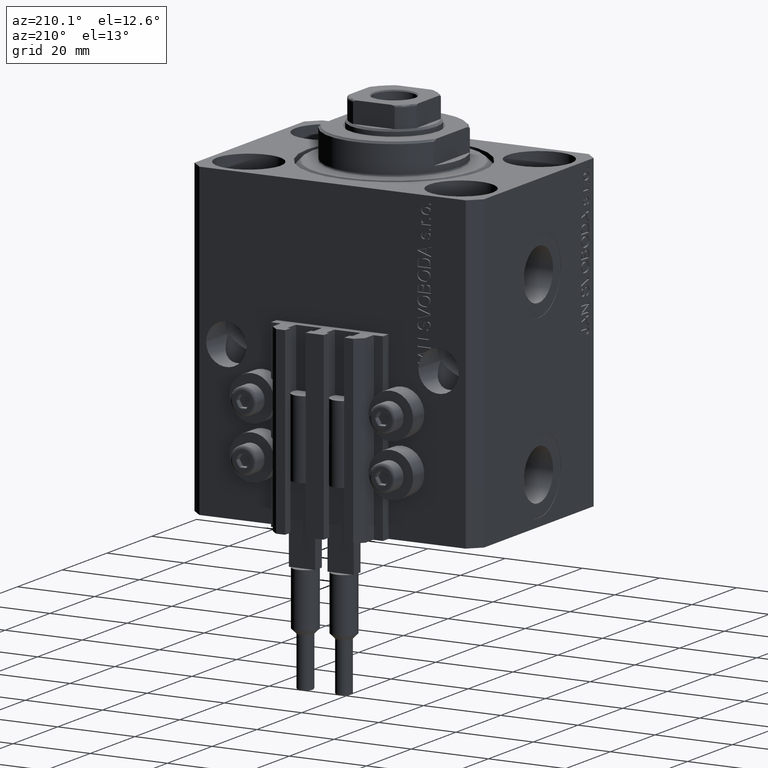
[diagram: clean part render]
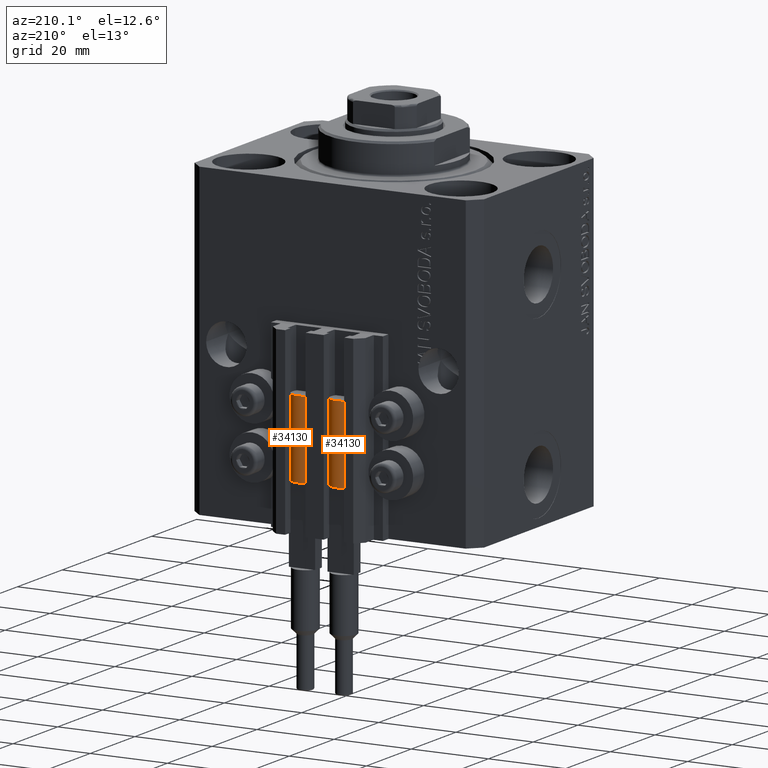
[diagram: same view with one multi-face feature highlighted, each face labeled with its STEP entity id]
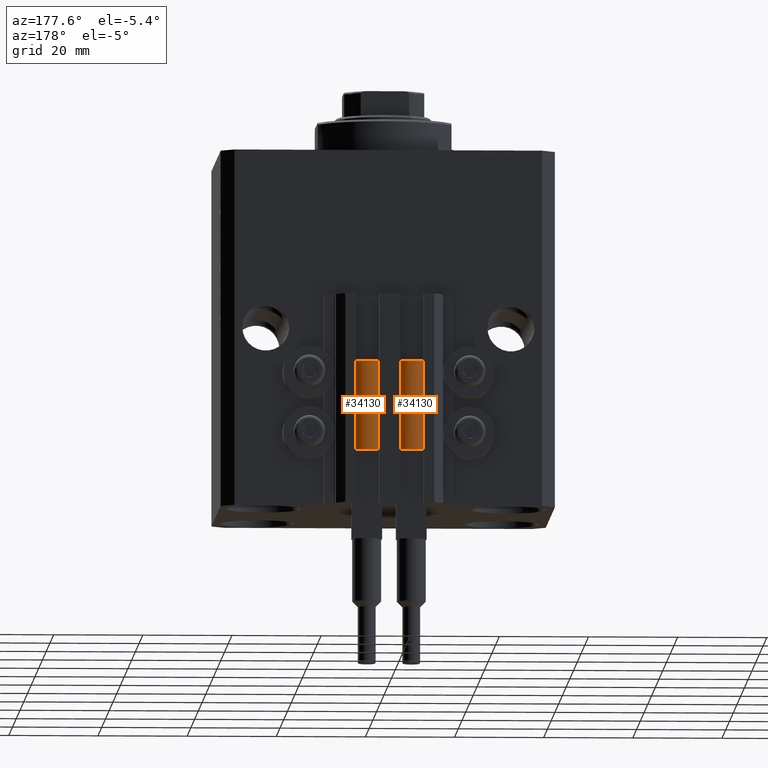
[diagram: same view with one multi-face feature highlighted, each face labeled with its STEP entity id]
A machine part, auxiliary view. The highlighted faces form ONE feature: a constant-radius fillet chain: 2 tangent blend faces with common blend radius 3.4 mm. The faces share edges in the B-rep.
A second angle (auxiliary view) of the same feature is appended — it is thin or edge-on in the first view.
Their STEP definitions:
[1] entity #34130 (Cylinder):
#1485 = LINE ( 'NONE', #19772, #32616 ) ;
#2587 = DIRECTION ( 'NONE',  ( 1.000000000000000000, 0.000000000000000000, 0.000000000000000000 ) ) ;
#2781 = CARTESIAN_POINT ( 'NONE',  ( -3.400000000000000355, 0.000000000000000000, 20.00000000000000000 ) ) ;
#3300 = AXIS2_PLACEMENT_3D ( 'NONE', #12740, #9838, #38776 ) ;
#3411 = CIRCLE ( 'NONE', #41113, 3.400000000000000355 ) ;
#3428 = VERTEX_POINT ( 'NONE', #22616 ) ;
#3618 = CARTESIAN_POINT ( 'NONE',  ( 3.400000000000000355, 0.000000000000000000, 20.00000000000000000 ) ) ;
#3913 = FACE_OUTER_BOUND ( 'NONE', #34614, .T. ) ;
#4676 = ORIENTED_EDGE ( 'NONE', *, *, #8267, .F. ) ;
#5248 = EDGE_CURVE ( 'NONE', #3428, #6423, #17051, .T. ) ;
#5482 = DIRECTION ( 'NONE',  ( 0.000000000000000000, 0.000000000000000000, 1.000000000000000000 ) ) ;
#6423 = VERTEX_POINT ( 'NONE', #39630 ) ;
#6686 = CIRCLE ( 'NONE', #7447, 3.400000000000000355 ) ;
#7447 = AXIS2_PLACEMENT_3D ( 'NONE', #34879, #5482, #24019 ) ;
#7971 = VERTEX_POINT ( 'NONE', #24329 ) ;
#8267 = EDGE_CURVE ( 'NONE', #15425, #36897, #10469, .T. ) ;
#8632 = EDGE_CURVE ( 'NONE', #12918, #3428, #3411, .T. ) ;
#8717 = DIRECTION ( 'NONE',  ( -0.000000000000000000, -0.000000000000000000, -1.000000000000000000 ) ) ;
#9838 = DIRECTION ( 'NONE',  ( 0.000000000000000000, 0.000000000000000000, 1.000000000000000000 ) ) ;
#10469 = LINE ( 'NONE', #2781, #17120 ) ;
#11356 = CARTESIAN_POINT ( 'NONE',  ( 0.000000000000000000, 0.000000000000000000, 20.00000000000000000 ) ) ;
#12740 = CARTESIAN_POINT ( 'NONE',  ( 0.000000000000000000, 0.000000000000000000, 20.00000000000000000 ) ) ;
#12918 = VERTEX_POINT ( 'NONE', #3618 ) ;
#12930 = ORIENTED_EDGE ( 'NONE', *, *, #5248, .F. ) ;
#13570 = ORIENTED_EDGE ( 'NONE', *, *, #23542, .F. ) ;
#14053 = ORIENTED_EDGE ( 'NONE', *, *, #36455, .T. ) ;
#15425 = VERTEX_POINT ( 'NONE', #22764 ) ;
#17051 = CIRCLE ( 'NONE', #41674, 3.400000000000000355 ) ;
#17120 = VECTOR ( 'NONE', #24690, 1000.000000000000000 ) ;
#17207 = CARTESIAN_POINT ( 'NONE',  ( -3.400000000000000355, 0.000000000000000000, 0.000000000000000000 ) ) ;
#18584 = CYLINDRICAL_SURFACE ( 'NONE', #47519, 3.400000000000000355 ) ;
#19772 = CARTESIAN_POINT ( 'NONE',  ( 3.400000000000000355, 4.163799117101001052E-16, 20.00000000000000000 ) ) ;
#22338 = EDGE_CURVE ( 'NONE', #12918, #7971, #1485, .T. ) ;
#22616 = CARTESIAN_POINT ( 'NONE',  ( 3.051229260478471428, 1.500000000000000000, 20.00000000000000000 ) ) ;
#22764 = CARTESIAN_POINT ( 'NONE',  ( -3.399999999999999467, -4.915049848600952119E-16, 20.00000000000000000 ) ) ;
#23330 = DIRECTION ( 'NONE',  ( -1.000000000000000000, 0.000000000000000000, 0.000000000000000000 ) ) ;
#23542 = EDGE_CURVE ( 'NONE', #6423, #15425, #47151, .T. ) ;
#24019 = DIRECTION ( 'NONE',  ( 1.000000000000000000, 0.000000000000000000, 0.000000000000000000 ) ) ;
#24329 = CARTESIAN_POINT ( 'NONE',  ( 3.400000000000000355, 4.163799117101001052E-16, 0.000000000000000000 ) ) ;
#24690 = DIRECTION ( 'NONE',  ( -0.000000000000000000, -0.000000000000000000, -1.000000000000000000 ) ) ;
#24877 = DIRECTION ( 'NONE',  ( 1.000000000000000000, 0.000000000000000000, 0.000000000000000000 ) ) ;
#25109 = DIRECTION ( 'NONE',  ( 0.000000000000000000, 0.000000000000000000, 1.000000000000000000 ) ) ;
#26056 = DIRECTION ( 'NONE',  ( -0.000000000000000000, -0.000000000000000000, -1.000000000000000000 ) ) ;
#32193 = DIRECTION ( 'NONE',  ( 0.000000000000000000, 0.000000000000000000, 1.000000000000000000 ) ) ;
#32616 = VECTOR ( 'NONE', #8717, 1000.000000000000000 ) ;
#33972 = ORIENTED_EDGE ( 'NONE', *, *, #22338, .T. ) ;
#34130 = ADVANCED_FACE ( 'NONE', ( #3913 ), #18584, .T. ) ;
#34614 = EDGE_LOOP ( 'NONE', ( #41449, #33972, #14053, #4676, #13570, #12930 ) ) ;
#34879 = CARTESIAN_POINT ( 'NONE',  ( 0.000000000000000000, 0.000000000000000000, 0.000000000000000000 ) ) ;
#36056 = CARTESIAN_POINT ( 'NONE',  ( 0.000000000000000000, 0.000000000000000000, 20.00000000000000000 ) ) ;
#36455 = EDGE_CURVE ( 'NONE', #7971, #36897, #6686, .T. ) ;
#36897 = VERTEX_POINT ( 'NONE', #17207 ) ;
#38776 = DIRECTION ( 'NONE',  ( 1.000000000000000000, 0.000000000000000000, 0.000000000000000000 ) ) ;
#39630 = CARTESIAN_POINT ( 'NONE',  ( -3.051229260478471428, 1.500000000000000000, 20.00000000000000000 ) ) ;
#41113 = AXIS2_PLACEMENT_3D ( 'NONE', #47057, #25109, #24877 ) ;
#41449 = ORIENTED_EDGE ( 'NONE', *, *, #8632, .F. ) ;
#41674 = AXIS2_PLACEMENT_3D ( 'NONE', #36056, #32193, #2587 ) ;
#47057 = CARTESIAN_POINT ( 'NONE',  ( 0.000000000000000000, 0.000000000000000000, 20.00000000000000000 ) ) ;
#47151 = CIRCLE ( 'NONE', #3300, 3.400000000000000355 ) ;
#47519 = AXIS2_PLACEMENT_3D ( 'NONE', #11356, #26056, #23330 ) ;
[2] entity #34130 (Cylinder):
#1485 = LINE ( 'NONE', #19772, #32616 ) ;
#2587 = DIRECTION ( 'NONE',  ( 1.000000000000000000, 0.000000000000000000, 0.000000000000000000 ) ) ;
#2781 = CARTESIAN_POINT ( 'NONE',  ( -3.400000000000000355, 0.000000000000000000, 20.00000000000000000 ) ) ;
#3300 = AXIS2_PLACEMENT_3D ( 'NONE', #12740, #9838, #38776 ) ;
#3411 = CIRCLE ( 'NONE', #41113, 3.400000000000000355 ) ;
#3428 = VERTEX_POINT ( 'NONE', #22616 ) ;
#3618 = CARTESIAN_POINT ( 'NONE',  ( 3.400000000000000355, 0.000000000000000000, 20.00000000000000000 ) ) ;
#3913 = FACE_OUTER_BOUND ( 'NONE', #34614, .T. ) ;
#4676 = ORIENTED_EDGE ( 'NONE', *, *, #8267, .F. ) ;
#5248 = EDGE_CURVE ( 'NONE', #3428, #6423, #17051, .T. ) ;
#5482 = DIRECTION ( 'NONE',  ( 0.000000000000000000, 0.000000000000000000, 1.000000000000000000 ) ) ;
#6423 = VERTEX_POINT ( 'NONE', #39630 ) ;
#6686 = CIRCLE ( 'NONE', #7447, 3.400000000000000355 ) ;
#7447 = AXIS2_PLACEMENT_3D ( 'NONE', #34879, #5482, #24019 ) ;
#7971 = VERTEX_POINT ( 'NONE', #24329 ) ;
#8267 = EDGE_CURVE ( 'NONE', #15425, #36897, #10469, .T. ) ;
#8632 = EDGE_CURVE ( 'NONE', #12918, #3428, #3411, .T. ) ;
#8717 = DIRECTION ( 'NONE',  ( -0.000000000000000000, -0.000000000000000000, -1.000000000000000000 ) ) ;
#9838 = DIRECTION ( 'NONE',  ( 0.000000000000000000, 0.000000000000000000, 1.000000000000000000 ) ) ;
#10469 = LINE ( 'NONE', #2781, #17120 ) ;
#11356 = CARTESIAN_POINT ( 'NONE',  ( 0.000000000000000000, 0.000000000000000000, 20.00000000000000000 ) ) ;
#12740 = CARTESIAN_POINT ( 'NONE',  ( 0.000000000000000000, 0.000000000000000000, 20.00000000000000000 ) ) ;
#12918 = VERTEX_POINT ( 'NONE', #3618 ) ;
#12930 = ORIENTED_EDGE ( 'NONE', *, *, #5248, .F. ) ;
#13570 = ORIENTED_EDGE ( 'NONE', *, *, #23542, .F. ) ;
#14053 = ORIENTED_EDGE ( 'NONE', *, *, #36455, .T. ) ;
#15425 = VERTEX_POINT ( 'NONE', #22764 ) ;
#17051 = CIRCLE ( 'NONE', #41674, 3.400000000000000355 ) ;
#17120 = VECTOR ( 'NONE', #24690, 1000.000000000000000 ) ;
#17207 = CARTESIAN_POINT ( 'NONE',  ( -3.400000000000000355, 0.000000000000000000, 0.000000000000000000 ) ) ;
#18584 = CYLINDRICAL_SURFACE ( 'NONE', #47519, 3.400000000000000355 ) ;
#19772 = CARTESIAN_POINT ( 'NONE',  ( 3.400000000000000355, 4.163799117101001052E-16, 20.00000000000000000 ) ) ;
#22338 = EDGE_CURVE ( 'NONE', #12918, #7971, #1485, .T. ) ;
#22616 = CARTESIAN_POINT ( 'NONE',  ( 3.051229260478471428, 1.500000000000000000, 20.00000000000000000 ) ) ;
#22764 = CARTESIAN_POINT ( 'NONE',  ( -3.399999999999999467, -4.915049848600952119E-16, 20.00000000000000000 ) ) ;
#23330 = DIRECTION ( 'NONE',  ( -1.000000000000000000, 0.000000000000000000, 0.000000000000000000 ) ) ;
#23542 = EDGE_CURVE ( 'NONE', #6423, #15425, #47151, .T. ) ;
#24019 = DIRECTION ( 'NONE',  ( 1.000000000000000000, 0.000000000000000000, 0.000000000000000000 ) ) ;
#24329 = CARTESIAN_POINT ( 'NONE',  ( 3.400000000000000355, 4.163799117101001052E-16, 0.000000000000000000 ) ) ;
#24690 = DIRECTION ( 'NONE',  ( -0.000000000000000000, -0.000000000000000000, -1.000000000000000000 ) ) ;
#24877 = DIRECTION ( 'NONE',  ( 1.000000000000000000, 0.000000000000000000, 0.000000000000000000 ) ) ;
#25109 = DIRECTION ( 'NONE',  ( 0.000000000000000000, 0.000000000000000000, 1.000000000000000000 ) ) ;
#26056 = DIRECTION ( 'NONE',  ( -0.000000000000000000, -0.000000000000000000, -1.000000000000000000 ) ) ;
#32193 = DIRECTION ( 'NONE',  ( 0.000000000000000000, 0.000000000000000000, 1.000000000000000000 ) ) ;
#32616 = VECTOR ( 'NONE', #8717, 1000.000000000000000 ) ;
#33972 = ORIENTED_EDGE ( 'NONE', *, *, #22338, .T. ) ;
#34130 = ADVANCED_FACE ( 'NONE', ( #3913 ), #18584, .T. ) ;
#34614 = EDGE_LOOP ( 'NONE', ( #41449, #33972, #14053, #4676, #13570, #12930 ) ) ;
#34879 = CARTESIAN_POINT ( 'NONE',  ( 0.000000000000000000, 0.000000000000000000, 0.000000000000000000 ) ) ;
#36056 = CARTESIAN_POINT ( 'NONE',  ( 0.000000000000000000, 0.000000000000000000, 20.00000000000000000 ) ) ;
#36455 = EDGE_CURVE ( 'NONE', #7971, #36897, #6686, .T. ) ;
#36897 = VERTEX_POINT ( 'NONE', #17207 ) ;
#38776 = DIRECTION ( 'NONE',  ( 1.000000000000000000, 0.000000000000000000, 0.000000000000000000 ) ) ;
#39630 = CARTESIAN_POINT ( 'NONE',  ( -3.051229260478471428, 1.500000000000000000, 20.00000000000000000 ) ) ;
#41113 = AXIS2_PLACEMENT_3D ( 'NONE', #47057, #25109, #24877 ) ;
#41449 = ORIENTED_EDGE ( 'NONE', *, *, #8632, .F. ) ;
#41674 = AXIS2_PLACEMENT_3D ( 'NONE', #36056, #32193, #2587 ) ;
#47057 = CARTESIAN_POINT ( 'NONE',  ( 0.000000000000000000, 0.000000000000000000, 20.00000000000000000 ) ) ;
#47151 = CIRCLE ( 'NONE', #3300, 3.400000000000000355 ) ;
#47519 = AXIS2_PLACEMENT_3D ( 'NONE', #11356, #26056, #23330 ) ;